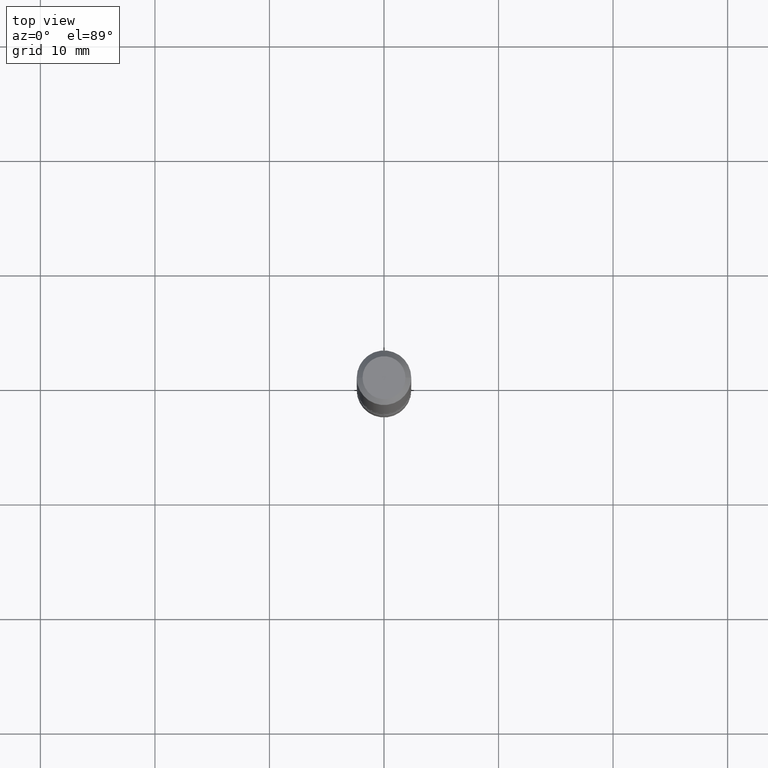
[diagram: clean part render]
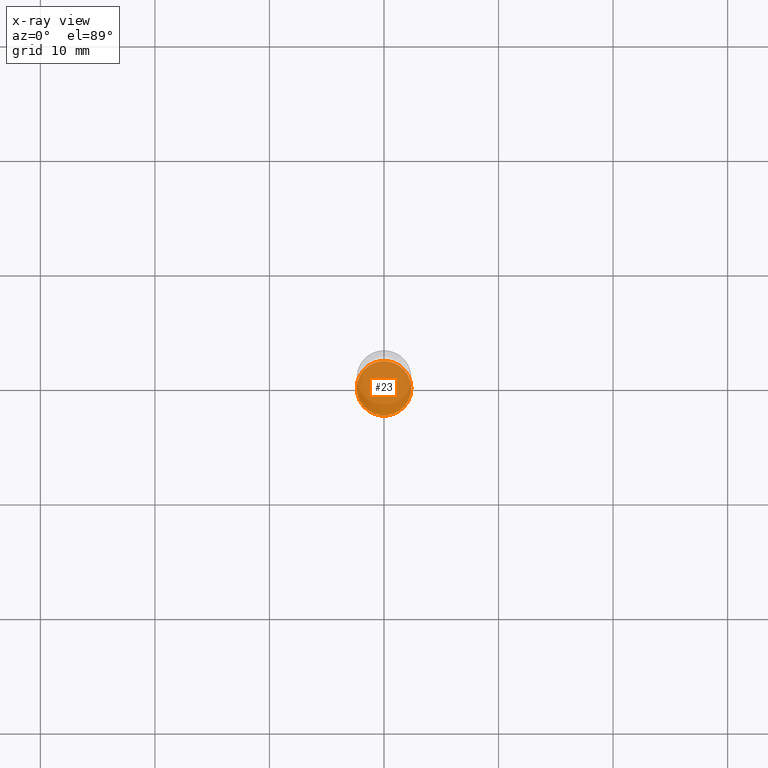
[diagram: x-ray — body ghosted, one internal face saturated and labeled with its STEP entity id]
A machine part, top view, then the same camera in x-ray: the body is ghosted and one INTERNAL B-rep face — a face not visible from any outside direction — is saturated and labeled: STEP entity #23.
In plain terms, the highlighted planar face has unit normal (0, -0, -1).
Its self-contained STEP definition (entity closure, byte-faithful):
#10 = DIRECTION ( 'NONE',  ( 2.438088387897960049E-29, -3.491481338843145188E-15, -1.000000000000000000 ) ) ;
#13 = PLANE ( 'NONE',  #462 ) ;
#23 = ADVANCED_FACE ( 'NONE', ( #300 ), #13, .F. ) ;
#30 = DIRECTION ( 'NONE',  ( 1.000000000000000000, -6.982962677686270655E-15, 0.000000000000000000 ) ) ;
#45 = CIRCLE ( 'NONE', #109, 0.09375000000000002776 ) ;
#99 = DIRECTION ( 'NONE',  ( 1.000000000000000000, -6.982962677686270655E-15, 0.000000000000000000 ) ) ;
#100 = CARTESIAN_POINT ( 'NONE',  ( 8.726388948129611336E-30, -1.361158663068067946E-14, -2.125000000000000000 ) ) ;
#104 = VERTEX_POINT ( 'NONE', #250 ) ;
#109 = AXIS2_PLACEMENT_3D ( 'NONE', #157, #323, #99 ) ;
#140 = VERTEX_POINT ( 'NONE', #465 ) ;
#157 = CARTESIAN_POINT ( 'NONE',  ( 5.196621213143415268E-29, -7.419397845041685201E-15, -2.125000000000000000 ) ) ;
#161 = AXIS2_PLACEMENT_3D ( 'NONE', #514, #285, #30 ) ;
#215 = DIRECTION ( 'NONE',  ( -1.000000000000000000, 6.982962677686265922E-15, -4.876176775795935793E-29 ) ) ;
#246 = CIRCLE ( 'NONE', #161, 0.09375000000000002776 ) ;
#250 = CARTESIAN_POINT ( 'NONE',  ( -0.09375000000000002776, -7.355544561217034463E-15, -2.125000000000000000 ) ) ;
#251 = ORIENTED_EDGE ( 'NONE', *, *, #492, .T. ) ;
#285 = DIRECTION ( 'NONE',  ( -2.445468806185136597E-29, 3.491481338843145583E-15, 1.000000000000000000 ) ) ;
#300 = FACE_OUTER_BOUND ( 'NONE', #437, .T. ) ;
#323 = DIRECTION ( 'NONE',  ( -2.445468806185136597E-29, 3.491481338843145583E-15, 1.000000000000000000 ) ) ;
#358 = EDGE_CURVE ( 'NONE', #140, #104, #246, .T. ) ;
#424 = ORIENTED_EDGE ( 'NONE', *, *, #358, .T. ) ;
#437 = EDGE_LOOP ( 'NONE', ( #424, #251 ) ) ;
#462 = AXIS2_PLACEMENT_3D ( 'NONE', #100, #10, #215 ) ;
#465 = CARTESIAN_POINT ( 'NONE',  ( 0.09375000000000002776, -8.074050596074771916E-15, -2.125000000000000000 ) ) ;
#492 = EDGE_CURVE ( 'NONE', #104, #140, #45, .T. ) ;
#514 = CARTESIAN_POINT ( 'NONE',  ( 5.196621213143415268E-29, -7.419397845041685201E-15, -2.125000000000000000 ) ) ;